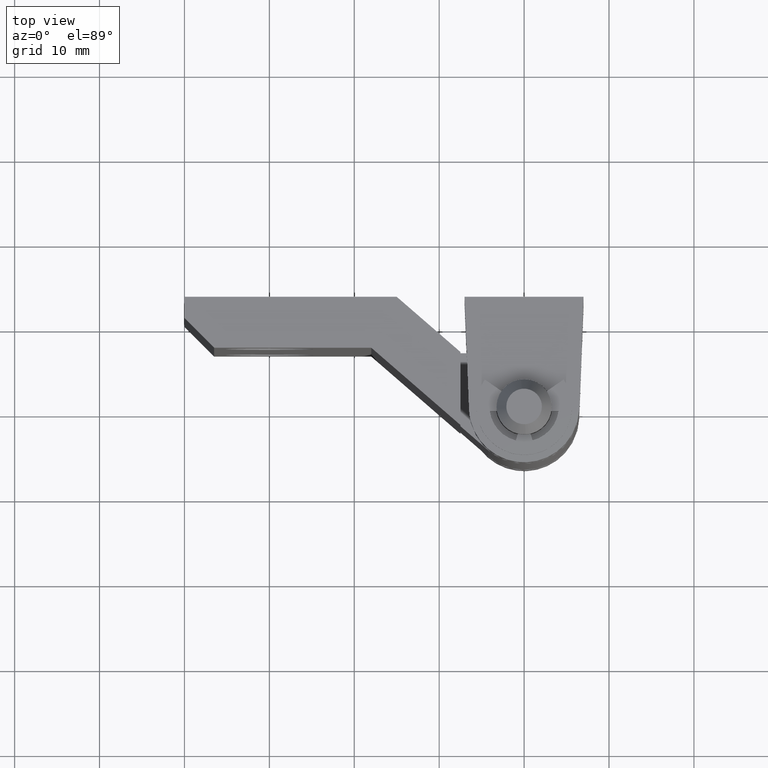
[diagram: clean part render]
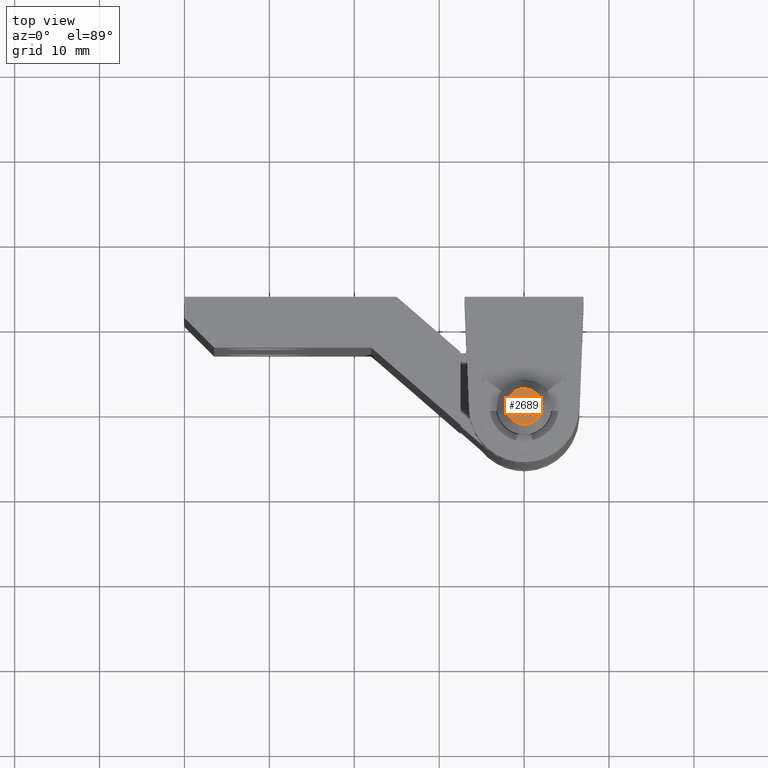
[diagram: same view with one face highlighted and labeled with its STEP entity id]
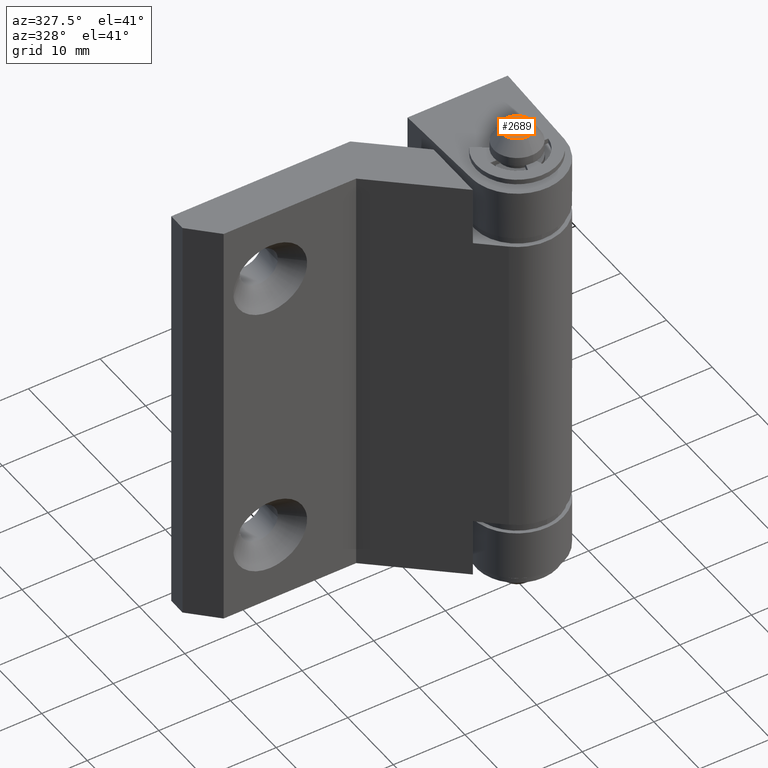
[diagram: same view with one face highlighted and labeled with its STEP entity id]
A machine part, top view. The second image highlights one B-rep face of the part: STEP entity #2689.
A second angle (auxiliary view) of the same face is appended — the face is thin or edge-on in the first view.
In plain terms, the highlighted face is a freeform B-spline surface patch.
Its self-contained STEP definition (entity closure, byte-faithful):
#1840=CARTESIAN_POINT('',(-0.247320487841788,2.080681090508016,64.750003075388634));
#1841=VERTEX_POINT('',#1840);
#1847=CARTESIAN_POINT('',(2.095328428655280,0.0,64.750003075460100));
#1848=VERTEX_POINT('',#1847);
#1849=CARTESIAN_POINT('',(-0.247320487841788,2.080681090508016,64.750003075388634));
#1850=CARTESIAN_POINT('',(-0.124093981979065,2.095328428655280,64.750003075460100));
#1851=CARTESIAN_POINT('',(0.0,2.095328428655280,64.750003075460100));
#1852=CARTESIAN_POINT('',(2.095328428655281,2.095328428655281,64.750003075460086));
#1853=CARTESIAN_POINT('',(2.095328428655280,0.0,64.750003075460100));
#1861=(BOUNDED_CURVE()B_SPLINE_CURVE(2,(#1849,#1850,#1851,#1852,#1853),.UNSPECIFIED.,.F.,.U.)B_SPLINE_CURVE_WITH_KNOTS((3,2,3),(0.229562473449683,0.250000000000000,0.500000000000000),.UNSPECIFIED.)CURVE()GEOMETRIC_REPRESENTATION_ITEM()RATIONAL_B_SPLINE_CURVE((0.956026754058598,0.976055948256369,1.0,0.707106781186548,1.0))REPRESENTATION_ITEM(''));
#1862=EDGE_CURVE('',#1841,#1848,#1861,.T.);
#1864=CARTESIAN_POINT('',(0.127916740431946,-2.091420218764124,64.750003075457158));
#1865=VERTEX_POINT('',#1864);
#1866=CARTESIAN_POINT('',(2.095328428655280,0.0,64.750003075460100));
#1867=CARTESIAN_POINT('',(2.095328428655280,-1.971088164964703,64.750003075460100));
#1868=CARTESIAN_POINT('',(0.127916740431946,-2.091420218764124,64.750003075457144));
#1876=(BOUNDED_CURVE()B_SPLINE_CURVE(2,(#1866,#1867,#1868),.UNSPECIFIED.,.F.,.U.)B_SPLINE_CURVE_WITH_KNOTS((3,3),(0.500000000000000,0.739332962239234),.UNSPECIFIED.)CURVE()GEOMETRIC_REPRESENTATION_ITEM()RATIONAL_B_SPLINE_CURVE((1.0,0.719603993286369,0.976072041667341))REPRESENTATION_ITEM(''));
#1877=EDGE_CURVE('',#1848,#1865,#1876,.T.);
#1910=CARTESIAN_POINT('',(-2.095328428655280,0.0,64.750003075460100));
#1911=VERTEX_POINT('',#1910);
#1912=CARTESIAN_POINT('',(0.127916740431946,-2.091420218764125,64.750003075457158));
#1913=CARTESIAN_POINT('',(0.064018073530127,-2.095328428655280,64.750003075460100));
#1914=CARTESIAN_POINT('',(0.0,-2.095328428655280,64.750003075460100));
#1915=CARTESIAN_POINT('',(-2.095328428655281,-2.095328428655281,64.750003075460086));
#1916=CARTESIAN_POINT('',(-2.095328428655280,0.0,64.750003075460100));
#1924=(BOUNDED_CURVE()B_SPLINE_CURVE(2,(#1912,#1913,#1914,#1915,#1916),.UNSPECIFIED.,.F.,.U.)B_SPLINE_CURVE_WITH_KNOTS((3,2,3),(0.739332962239234,0.750000000000000,1.0),.UNSPECIFIED.)CURVE()GEOMETRIC_REPRESENTATION_ITEM()RATIONAL_B_SPLINE_CURVE((0.976072041667341,0.987502787900178,1.0,0.707106781186548,1.0))REPRESENTATION_ITEM(''));
#1925=EDGE_CURVE('',#1865,#1911,#1924,.T.);
#1927=CARTESIAN_POINT('',(-2.095328428655280,0.0,64.750003075460100));
#1928=CARTESIAN_POINT('',(-2.095328428655281,1.861017333101863,64.750003075460100));
#1929=CARTESIAN_POINT('',(-0.247320487841788,2.080681090508016,64.750003075388634));
#1937=(BOUNDED_CURVE()B_SPLINE_CURVE(2,(#1927,#1928,#1929),.UNSPECIFIED.,.F.,.U.)B_SPLINE_CURVE_WITH_KNOTS((3,3),(0.0,0.229562473449683),.UNSPECIFIED.)CURVE()GEOMETRIC_REPRESENTATION_ITEM()RATIONAL_B_SPLINE_CURVE((1.0,0.731050832930179,0.956026754058598))REPRESENTATION_ITEM(''));
#1938=EDGE_CURVE('',#1911,#1841,#1937,.T.);
#2678=CARTESIAN_POINT('',(2.304651636905890,-2.304600889479429,64.750003075460000));
#2679=CARTESIAN_POINT('',(-2.304651524503714,-2.304600889479429,64.750003075460000));
#2680=CARTESIAN_POINT('',(2.304651636905890,2.304613628392711,64.750003075460000));
#2681=CARTESIAN_POINT('',(-2.304651524503714,2.304613628392711,64.750003075460000));
#2682=B_SPLINE_SURFACE_WITH_KNOTS('',1,1,((#2678,#2680),(#2679,#2681)),.UNSPECIFIED.,.F.,.F.,.U.,(2,2),(2,2),(0.0,4.609303161409605),(0.0,4.609214517872140),.UNSPECIFIED.);
#2683=ORIENTED_EDGE('',*,*,#1925,.F.);
#2684=ORIENTED_EDGE('',*,*,#1877,.F.);
#2685=ORIENTED_EDGE('',*,*,#1862,.F.);
#2686=ORIENTED_EDGE('',*,*,#1938,.F.);
#2687=EDGE_LOOP('',(#2683,#2684,#2685,#2686));
#2688=FACE_OUTER_BOUND('',#2687,.T.);
#2689=ADVANCED_FACE('',(#2688),#2682,.F.);